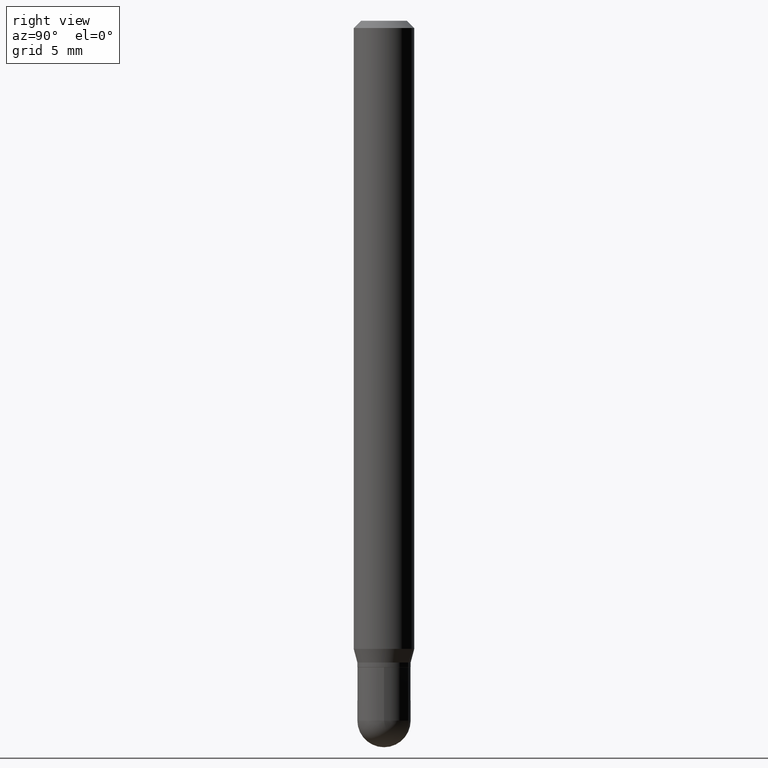
[diagram: clean part render]
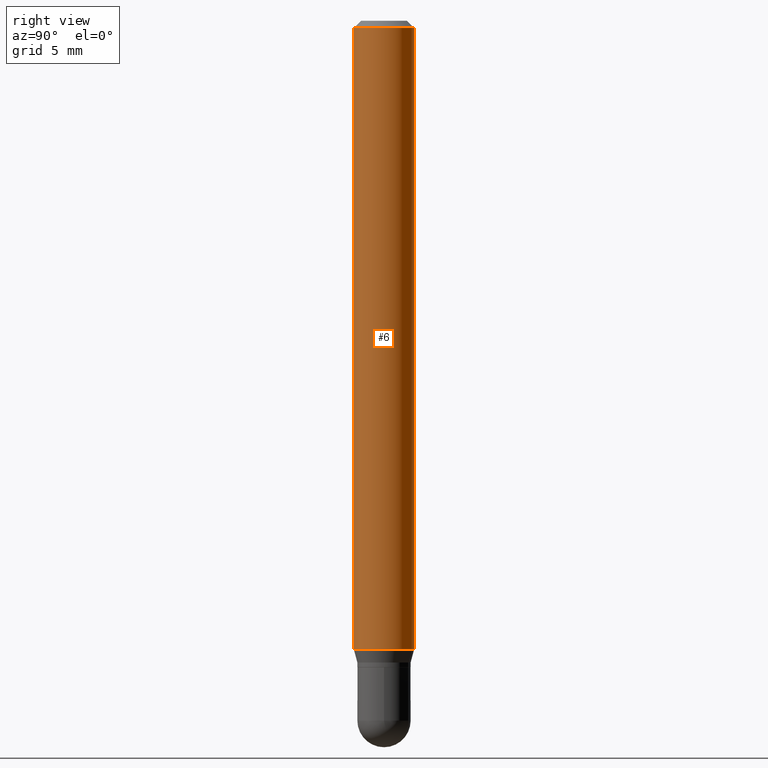
[diagram: same view with one face highlighted and labeled with its STEP entity id]
A machine part, right view. The second image highlights one B-rep face of the part: STEP entity #6.
In plain terms, the highlighted cylindrical surface (edge-blend (fillet) strip) has radius 1.5875 mm, axis along (-0, 0, 1).
Its self-contained STEP definition (entity closure, byte-faithful):
#6 = ADVANCED_FACE ( 'NONE', ( #495 ), #93, .T. ) ;
#18 = CIRCLE ( 'NONE', #486, 0.06250000000000000000 ) ;
#44 = DIRECTION ( 'NONE',  ( -6.982962677686265922E-15, -1.000000000000000000, 4.370956789862821150E-15 ) ) ;
#57 = AXIS2_PLACEMENT_3D ( 'NONE', #386, #303, #44 ) ;
#59 = LINE ( 'NONE', #372, #348 ) ;
#62 = DIRECTION ( 'NONE',  ( -2.445595275774768217E-29, 3.491300227192590875E-15, 1.000000000000000000 ) ) ;
#75 = EDGE_CURVE ( 'NONE', #362, #166, #18, .T. ) ;
#76 = CARTESIAN_POINT ( 'NONE',  ( 4.440892098500945650E-16, 0.06249999999999995143, -0.01500000000000028394 ) ) ;
#85 = VERTEX_POINT ( 'NONE', #346 ) ;
#89 = VECTOR ( 'NONE', #266, 39.37007874015748143 ) ;
#93 = CYLINDRICAL_SURFACE ( 'NONE', #496, 0.06250000000000000000 ) ;
#95 = CARTESIAN_POINT ( 'NONE',  ( 0.000000000000000000, 0.000000000000000000, 0.000000000000000000 ) ) ;
#102 = ORIENTED_EDGE ( 'NONE', *, *, #75, .F. ) ;
#106 = LINE ( 'NONE', #350, #89 ) ;
#108 = CARTESIAN_POINT ( 'NONE',  ( -4.364351673553912750E-16, -0.06250000000000005551, -0.01499999999999984852 ) ) ;
#166 = VERTEX_POINT ( 'NONE', #76 ) ;
#190 = EDGE_CURVE ( 'NONE', #344, #85, #506, .T. ) ;
#199 = ORIENTED_EDGE ( 'NONE', *, *, #470, .F. ) ;
#213 = ORIENTED_EDGE ( 'NONE', *, *, #190, .T. ) ;
#216 = CARTESIAN_POINT ( 'NONE',  ( -4.364351673553597205E-16, -0.06250000000000451028, -1.297009618943234077 ) ) ;
#225 = EDGE_CURVE ( 'NONE', #85, #166, #106, .T. ) ;
#239 = ORIENTED_EDGE ( 'NONE', *, *, #225, .T. ) ;
#266 = DIRECTION ( 'NONE',  ( -2.445595275774768217E-29, 3.491300227192590875E-15, 1.000000000000000000 ) ) ;
#268 = DIRECTION ( 'NONE',  ( -6.982962677686265922E-15, -1.000000000000000000, 3.483106191921935554E-15 ) ) ;
#303 = DIRECTION ( 'NONE',  ( -2.445595275774768217E-29, 3.491300227192590875E-15, 1.000000000000000000 ) ) ;
#336 = DIRECTION ( 'NONE',  ( -2.445595275774768217E-29, 3.491300227192590875E-15, 1.000000000000000000 ) ) ;
#344 = VERTEX_POINT ( 'NONE', #216 ) ;
#346 = CARTESIAN_POINT ( 'NONE',  ( 4.440892098500943678E-16, 0.06249999999999548972, -1.297009618943234743 ) ) ;
#348 = VECTOR ( 'NONE', #62, 39.37007874015748143 ) ;
#350 = CARTESIAN_POINT ( 'NONE',  ( 4.440892098500625669E-16, 0.06250000000000000000, -2.182062641995369297E-16 ) ) ;
#362 = VERTEX_POINT ( 'NONE', #108 ) ;
#366 = EDGE_LOOP ( 'NONE', ( #213, #239, #102, #199 ) ) ;
#372 = CARTESIAN_POINT ( 'NONE',  ( -4.364351673553916201E-16, -0.06250000000000000000, 2.182062641995369297E-16 ) ) ;
#386 = CARTESIAN_POINT ( 'NONE',  ( 3.171960596722006873E-29, -4.528249977287490116E-15, -1.297009618943234521 ) ) ;
#406 = DIRECTION ( 'NONE',  ( -6.982962677686265922E-15, -1.000000000000000000, 3.491300227192590875E-15 ) ) ;
#462 = CARTESIAN_POINT ( 'NONE',  ( 3.668392913662168686E-31, -5.236950340788909313E-17, -0.01500000000000006710 ) ) ;
#466 = DIRECTION ( 'NONE',  ( -2.445595275774768217E-29, 3.491300227192590875E-15, 1.000000000000000000 ) ) ;
#470 = EDGE_CURVE ( 'NONE', #344, #362, #59, .T. ) ;
#486 = AXIS2_PLACEMENT_3D ( 'NONE', #462, #466, #268 ) ;
#495 = FACE_OUTER_BOUND ( 'NONE', #366, .T. ) ;
#496 = AXIS2_PLACEMENT_3D ( 'NONE', #95, #336, #406 ) ;
#506 = CIRCLE ( 'NONE', #57, 0.06250000000000000000 ) ;